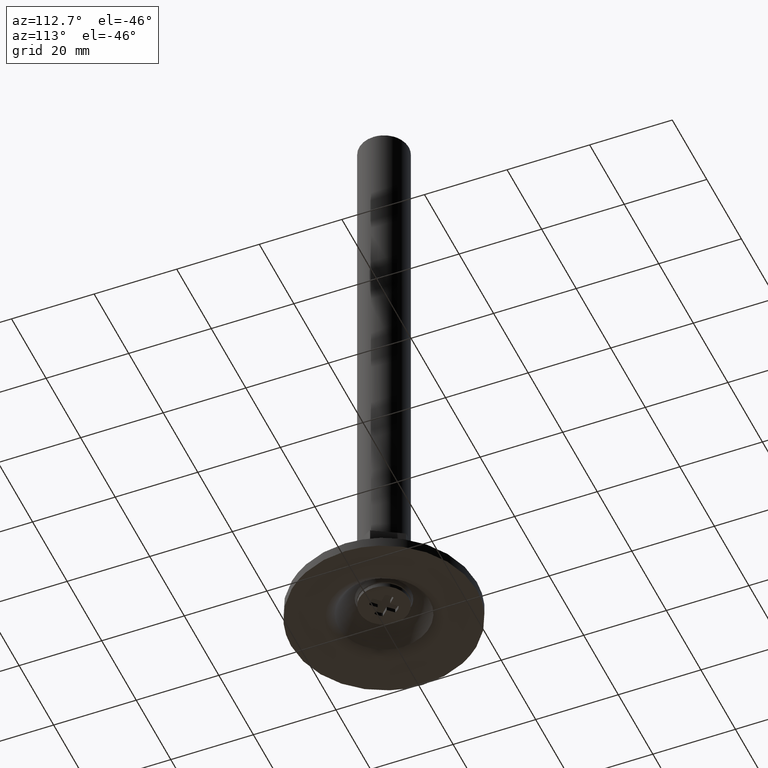
[diagram: clean part render]
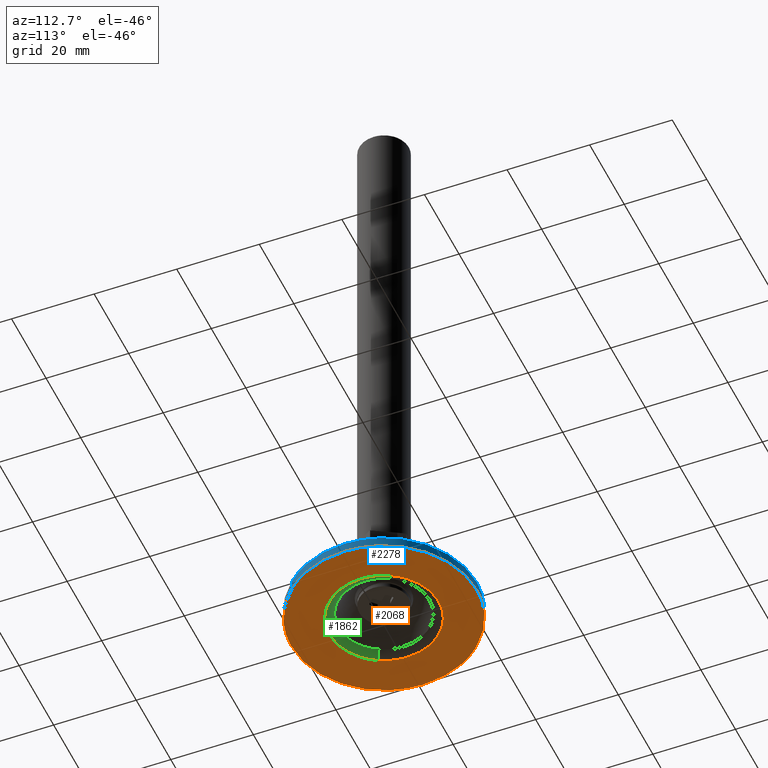
[diagram: same view with three faces highlighted in distinct colors, each labeled with its STEP entity id]
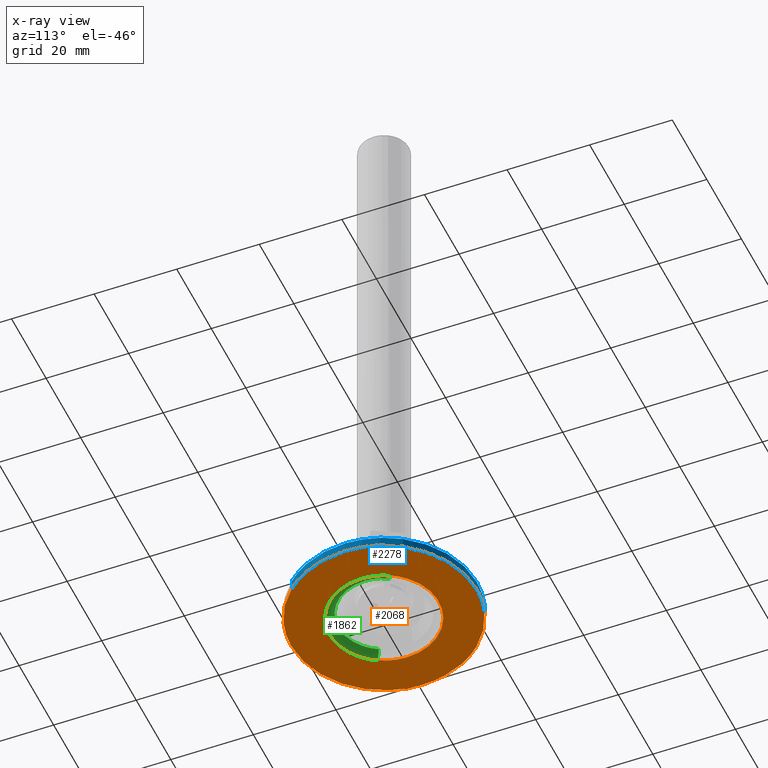
[diagram: x-ray of the same camera — body ghosted, the three highlighted faces saturated]
A machine part, auxiliary view with three faces highlighted in distinct colors.
The next image is the same camera in x-ray (body ghosted, the three faces saturated) — at least one of them is partly hidden behind the body in this view.
Their STEP definitions:

[orange] entity #2068 — the highlighted face is a freeform B-spline surface patch.
#1696=CARTESIAN_POINT('',(-11.625521835504660,-6.391184713284471,3.979822E-016));
#1697=VERTEX_POINT('',#1696);
#1707=CARTESIAN_POINT('',(-13.266499161421599,0.0,0.0));
#1708=VERTEX_POINT('',#1707);
#1709=CARTESIAN_POINT('',(-11.625521835504660,-6.391184713284471,3.979822E-016));
#1710=CARTESIAN_POINT('',(-11.976938626920720,-5.752058815245080,3.553738E-016));
#1711=CARTESIAN_POINT('',(-12.517089338621510,-4.542935168546803,2.766357E-016));
#1712=CARTESIAN_POINT('',(-13.113382631406150,-2.396435210340987,1.422947E-016));
#1713=CARTESIAN_POINT('',(-13.266639994917361,-0.903038111769238,5.275271E-017));
#1714=CARTESIAN_POINT('',(-13.266499161421599,0.0,0.0));
#1715=B_SPLINE_CURVE_WITH_KNOTS('',3,(#1709,#1710,#1711,#1712,#1713,#1714),.UNSPECIFIED.,.F.,.U.,(4,1,1,4),(0.000000012861800,2.188100938935548,3.959402328377551,6.668486947587002),.UNSPECIFIED.);
#1716=EDGE_CURVE('',#1697,#1708,#1715,.T.);
#1718=CARTESIAN_POINT('',(11.625521835504660,6.391184713284469,4.285962E-016));
#1719=VERTEX_POINT('',#1718);
#1720=CARTESIAN_POINT('',(-13.266499161421599,0.0,0.0));
#1721=CARTESIAN_POINT('',(-13.266541504141911,0.729360975372097,3.024318E-018));
#1722=CARTESIAN_POINT('',(-13.138401855159980,2.279235785752331,1.152226E-017));
#1723=CARTESIAN_POINT('',(-12.566695280902980,4.448448223463146,2.975396E-017));
#1724=CARTESIAN_POINT('',(-11.523500255926701,6.736600451629273,5.609507E-017));
#1725=CARTESIAN_POINT('',(-9.980653534092264,8.904666803353583,9.000917E-017));
#1726=CARTESIAN_POINT('',(-7.726880935070288,10.924393797086140,1.347919E-016));
#1727=CARTESIAN_POINT('',(-5.154006582786829,12.342954572310180,1.822358E-016));
#1728=CARTESIAN_POINT('',(-2.645163525983460,13.070271038717960,2.257785E-016));
#1729=CARTESIAN_POINT('',(-0.236713388477782,13.329011114829290,2.657561E-016));
#1730=CARTESIAN_POINT('',(2.140397046166540,13.178968312136710,3.035320E-016));
#1731=CARTESIAN_POINT('',(4.487106861740802,12.557280666191019,3.388607E-016));
#1732=CARTESIAN_POINT('',(6.478094494991458,11.633988879649420,3.671925E-016));
#1733=CARTESIAN_POINT('',(8.423296458930958,10.349620141112680,3.932871E-016));
#1734=CARTESIAN_POINT('',(10.203198777745570,8.626375225663470,4.148913E-016));
#1735=CARTESIAN_POINT('',(11.230291360848121,7.110229917939481,4.251941E-016));
#1736=CARTESIAN_POINT('',(11.625521835504660,6.391184713284469,4.285962E-016));
#1737=B_SPLINE_CURVE_WITH_KNOTS('',3,(#1720,#1721,#1722,#1723,#1724,#1725,#1726,#1727,#1728,#1729,#1730,#1731,#1732,#1733,#1734,#1735,#1736),.UNSPECIFIED.,.F.,.U.,(4,1,1,1,1,1,1,1,1,1,1,1,1,1,4),(0.000000233589120,2.188089414076735,4.649667989158274,6.701037500740267,9.709706952712331,12.581628220971920,15.727055630758720,18.462028473027321,20.376627807583759,22.975048172187240,25.573434112363881,27.624787538375511,29.539408102722621,32.548078422629402,35.009621496758747),.UNSPECIFIED.);
#1738=EDGE_CURVE('',#1708,#1719,#1737,.T.);
#1829=CARTESIAN_POINT('',(13.266499161421599,0.0,0.0));
#1830=VERTEX_POINT('',#1829);
#1831=CARTESIAN_POINT('',(11.625521835504660,6.391184713284469,4.285962E-016));
#1832=CARTESIAN_POINT('',(12.144457274773570,5.447781481160093,3.608613E-016));
#1833=CARTESIAN_POINT('',(12.976495301490379,3.368789559554618,2.166254E-016));
#1834=CARTESIAN_POINT('',(13.266865754212050,1.146171486647393,7.210323E-017));
#1835=CARTESIAN_POINT('',(13.266499161421599,0.0,0.0));
#1836=B_SPLINE_CURVE_WITH_KNOTS('',3,(#1831,#1832,#1833,#1834,#1835),.UNSPECIFIED.,.F.,.U.,(4,1,4),(0.000000012862060,3.230067143567569,6.668486947587000),.UNSPECIFIED.);
#1837=EDGE_CURVE('',#1719,#1830,#1836,.T.);
#1839=CARTESIAN_POINT('',(13.266499161421599,0.0,0.0));
#1840=CARTESIAN_POINT('',(13.267074775348631,-1.276471834726209,4.907342E-018));
#1841=CARTESIAN_POINT('',(13.001220872118710,-3.099526678467820,1.591601E-017));
#1842=CARTESIAN_POINT('',(12.075895478779650,-5.630393481642011,3.954237E-017));
#1843=CARTESIAN_POINT('',(10.868069036925190,-7.788896299514039,6.597206E-017));
#1844=CARTESIAN_POINT('',(9.190394295147423,-9.675732896643769,9.840300E-017));
#1845=CARTESIAN_POINT('',(7.094538297063879,-11.297337436297401,1.360850E-016));
#1846=CARTESIAN_POINT('',(4.935679261946577,-12.416129270955810,1.727755E-016));
#1847=CARTESIAN_POINT('',(2.730687802870714,-13.030815253021791,2.082166E-016));
#1848=CARTESIAN_POINT('',(0.693344321215253,-13.292280017151141,2.397828E-016));
#1849=CARTESIAN_POINT('',(-1.228477954606753,-13.270135459361789,2.685239E-016));
#1850=CARTESIAN_POINT('',(-3.569124563027646,-12.852770832206650,3.020251E-016));
#1851=CARTESIAN_POINT('',(-5.887979775738906,-11.988348351721219,3.334777E-016));
#1852=CARTESIAN_POINT('',(-8.258464852161618,-10.509166640252969,3.633372E-016));
#1853=CARTESIAN_POINT('',(-10.203221463394261,-8.626389957338716,3.852566E-016));
#1854=CARTESIAN_POINT('',(-11.230288191031210,-7.110228030367081,3.948231E-016));
#1855=CARTESIAN_POINT('',(-11.625521835504660,-6.391184713284471,3.979822E-016));
#1856=B_SPLINE_CURVE_WITH_KNOTS('',3,(#1839,#1840,#1841,#1842,#1843,#1844,#1845,#1846,#1847,#1848,#1849,#1850,#1851,#1852,#1853,#1854,#1855),.UNSPECIFIED.,.F.,.U.,(4,1,1,1,1,1,1,1,1,1,1,1,1,1,4),(0.000000233587969,3.829177178310196,5.470243180141814,8.068626115674828,11.214033894020909,12.991872108094300,16.000507062653579,18.462028473027040,19.829595868505859,22.154478360474759,24.205846692407409,26.941007560486739,29.539408102722401,32.548078422629288,35.009621496758768),.UNSPECIFIED.);
#1857=EDGE_CURVE('',#1830,#1697,#1856,.T.);
#1967=CARTESIAN_POINT('',(24.747749912781270,-24.747749912781181,0.0));
#1968=CARTESIAN_POINT('',(-24.747751119775330,-24.747749912781181,0.0));
#1969=CARTESIAN_POINT('',(24.747749912781270,24.747751119775231,0.0));
#1970=CARTESIAN_POINT('',(-24.747751119775330,24.747751119775231,0.0));
#1971=B_SPLINE_SURFACE_WITH_KNOTS('',1,1,((#1967,#1969),(#1968,#1970)),.UNSPECIFIED.,.F.,.F.,.U.,(2,2),(2,2),(0.0,49.495501032556589),(0.0,49.495501032556419),.UNSPECIFIED.);
#1972=CARTESIAN_POINT('',(-22.500000000000000,0.0,0.0));
#1973=VERTEX_POINT('',#1972);
#1974=CARTESIAN_POINT('',(-16.320922946411649,15.487977669410711,1.926750E-011));
#1975=VERTEX_POINT('',#1974);
#1976=CARTESIAN_POINT('',(-22.500000000000000,0.0,0.0));
#1977=CARTESIAN_POINT('',(-22.500113968359958,1.290084206286593,1.604903E-012));
#1978=CARTESIAN_POINT('',(-22.304316878680979,3.558807770512854,4.427262E-012));
#1979=CARTESIAN_POINT('',(-21.570845771034950,6.591993442626992,8.200634E-012));
#1980=CARTESIAN_POINT('',(-20.553730517630839,9.303666790284426,1.157404E-011));
#1981=CARTESIAN_POINT('',(-18.948622482158640,12.339519573251810,1.535073E-011));
#1982=CARTESIAN_POINT('',(-17.362230880133900,14.390982772080751,1.790281E-011));
#1983=CARTESIAN_POINT('',(-16.320922946411649,15.487977669410711,1.926750E-011));
#1984=B_SPLINE_CURVE_WITH_KNOTS('',3,(#1976,#1977,#1978,#1979,#1980,#1981,#1982,#1983),.UNSPECIFIED.,.F.,.U.,(4,1,1,1,1,4),(0.000000021520435,3.870236930279521,6.806298257423510,9.341933864975838,12.544912210286389,17.082434980384420),.UNSPECIFIED.);
#1985=EDGE_CURVE('',#1973,#1975,#1984,.T.);
#1986=ORIENTED_EDGE('',*,*,#1985,.T.);
#1987=CARTESIAN_POINT('',(0.000001948370509,22.499999999999918,0.0));
#1988=VERTEX_POINT('',#1987);
#1989=CARTESIAN_POINT('',(-16.320922946411649,15.487977669410711,1.926750E-011));
#1990=CARTESIAN_POINT('',(-15.110063719225669,16.764588918176589,1.783803E-011));
#1991=CARTESIAN_POINT('',(-12.938593028605469,18.571526396298850,1.527453E-011));
#1992=CARTESIAN_POINT('',(-9.896830404417910,20.261810953240111,1.168360E-011));
#1993=CARTESIAN_POINT('',(-7.346605714138147,21.319378220916018,8.672963E-012));
#1994=CARTESIAN_POINT('',(-4.184624540175745,22.225245507458439,4.940118E-012));
#1995=CARTESIAN_POINT('',(-1.569278530884917,22.500227116044702,1.852598E-012));
#1996=CARTESIAN_POINT('',(0.000001948370509,22.499999999999918,0.0));
#1997=B_SPLINE_CURVE_WITH_KNOTS('',3,(#1989,#1990,#1991,#1992,#1993,#1994,#1995,#1996),.UNSPECIFIED.,.F.,.U.,(4,1,1,1,1,4),(0.000000026464356,5.278437984761071,8.416969190577849,10.414192398242790,13.552743324542099,18.260539566417421),.UNSPECIFIED.);
#1998=EDGE_CURVE('',#1975,#1988,#1997,.T.);
#1999=ORIENTED_EDGE('',*,*,#1998,.T.);
#2000=CARTESIAN_POINT('',(22.500000000000000,0.0,0.0));
#2001=VERTEX_POINT('',#2000);
#2002=CARTESIAN_POINT('',(0.000001948370509,22.499999999999918,0.0));
#2003=CARTESIAN_POINT('',(1.288548630613537,22.500103910528821,0.0));
#2004=CARTESIAN_POINT('',(3.681518980185440,22.293870294810471,0.0));
#2005=CARTESIAN_POINT('',(6.993863515376519,21.464155683538880,0.0));
#2006=CARTESIAN_POINT('',(10.326174099631830,20.107895770157320,0.0));
#2007=CARTESIAN_POINT('',(13.278731925074551,18.288553894204810,0.0));
#2008=CARTESIAN_POINT('',(16.238999279883831,15.719133095914440,0.0));
#2009=CARTESIAN_POINT('',(18.219133938208831,13.336375224810890,0.0));
#2010=CARTESIAN_POINT('',(19.862106443416049,10.669653980816481,0.0));
#2011=CARTESIAN_POINT('',(21.163841742574551,7.917786341067790,0.0));
#2012=CARTESIAN_POINT('',(22.232150400581968,4.233741444193983,0.0));
#2013=CARTESIAN_POINT('',(22.500153865290120,1.426607296714789,0.0));
#2014=CARTESIAN_POINT('',(22.500000000000000,0.0,0.0));
#2015=B_SPLINE_CURVE_WITH_KNOTS('',3,(#2002,#2003,#2004,#2005,#2006,#2007,#2008,#2009,#2010,#2011,#2012,#2013,#2014),.UNSPECIFIED.,.F.,.U.,(4,1,1,1,1,1,1,1,1,1,4),(0.000000092857171,3.865624436655814,7.179038418416258,10.216338001058631,14.634205865736790,17.533483847616090,21.951286654925219,23.884108194995260,26.921406544100389,31.063170932761061,35.342971697531461),.UNSPECIFIED.);
#2016=EDGE_CURVE('',#1988,#2001,#2015,.T.);
#2017=ORIENTED_EDGE('',*,*,#2016,.T.);
#2018=CARTESIAN_POINT('',(16.320922946411589,-15.487977669410650,1.926750E-011));
#2019=VERTEX_POINT('',#2018);
#2020=CARTESIAN_POINT('',(22.500000000000000,0.0,0.0));
#2021=CARTESIAN_POINT('',(22.500122763408172,-1.290086975882271,1.604906E-012));
#2022=CARTESIAN_POINT('',(22.323486416621300,-3.336373487313658,4.150547E-012));
#2023=CARTESIAN_POINT('',(21.674959322538822,-6.203718958208104,7.717609E-012));
#2024=CARTESIAN_POINT('',(20.745011038705030,-8.899937068519108,1.107178E-011));
#2025=CARTESIAN_POINT('',(19.082661771354640,-12.160093845419730,1.512752E-011));
#2026=CARTESIAN_POINT('',(17.392868439970250,-14.358728447815190,1.786268E-011));
#2027=CARTESIAN_POINT('',(16.320922946411589,-15.487977669410650,1.926750E-011));
#2028=B_SPLINE_CURVE_WITH_KNOTS('',3,(#2020,#2021,#2022,#2023,#2024,#2025,#2026,#2027),.UNSPECIFIED.,.F.,.U.,(4,1,1,1,1,4),(0.000000021528095,3.870236930284834,6.139006360384721,8.808118124476836,12.411454409712659,17.082434980384392),.UNSPECIFIED.);
#2029=EDGE_CURVE('',#2001,#2019,#2028,.T.);
#2030=ORIENTED_EDGE('',*,*,#2029,.T.);
#2031=CARTESIAN_POINT('',(-0.000001948370870,-22.499999999999918,0.0));
#2032=VERTEX_POINT('',#2031);
#2033=CARTESIAN_POINT('',(16.320922946411589,-15.487977669410650,1.926750E-011));
#2034=CARTESIAN_POINT('',(15.633546268588219,-16.212375930340269,1.845603E-011));
#2035=CARTESIAN_POINT('',(14.127063404015111,-17.601712875655512,1.667756E-011));
#2036=CARTESIAN_POINT('',(11.272296136396569,-19.591640416899580,1.330740E-011));
#2037=CARTESIAN_POINT('',(8.079863267181958,-21.109430929483221,9.538602E-012));
#2038=CARTESIAN_POINT('',(4.184616112460575,-22.225229006534391,4.940108E-012));
#2039=CARTESIAN_POINT('',(1.569279916707052,-22.500228761932291,1.852600E-012));
#2040=CARTESIAN_POINT('',(-0.000001948370870,-22.499999999999918,0.0));
#2041=B_SPLINE_CURVE_WITH_KNOTS('',3,(#2033,#2034,#2035,#2036,#2037,#2038,#2039,#2040),.UNSPECIFIED.,.F.,.U.,(4,1,1,1,1,4),(0.000000026468665,2.995858530149059,6.134411292749894,10.414192398244881,13.552743324543650,18.260539566417702),.UNSPECIFIED.);
#2042=EDGE_CURVE('',#2019,#2032,#2041,.T.);
#2043=ORIENTED_EDGE('',*,*,#2042,.T.);
#2044=CARTESIAN_POINT('',(-0.000001948370870,-22.499999999999918,0.0));
#2045=CARTESIAN_POINT('',(-1.288549063874959,-22.500108094975161,0.0));
#2046=CARTESIAN_POINT('',(-3.681510481042210,-22.293843641591870,0.0));
#2047=CARTESIAN_POINT('',(-7.486303176441662,-21.340959863895449,0.0));
#2048=CARTESIAN_POINT('',(-10.780225216150290,-19.868819913958021,0.0));
#2049=CARTESIAN_POINT('',(-13.508033697709161,-18.057900290719580,0.0));
#2050=CARTESIAN_POINT('',(-15.934842958918161,-16.003423374684878,0.0));
#2051=CARTESIAN_POINT('',(-18.101392941685880,-13.537962900726860,0.0));
#2052=CARTESIAN_POINT('',(-20.241807876814299,-10.088162635037049,0.0));
#2053=CARTESIAN_POINT('',(-21.599145246597519,-6.694199578704914,0.0));
#2054=CARTESIAN_POINT('',(-22.353587187834940,-3.129281959744369,0.0));
#2055=CARTESIAN_POINT('',(-22.500042015964620,-1.058435247443339,0.0));
#2056=CARTESIAN_POINT('',(-22.500000000000000,0.0,0.0));
#2057=B_SPLINE_CURVE_WITH_KNOTS('',3,(#2044,#2045,#2046,#2047,#2048,#2049,#2050,#2051,#2052,#2053,#2054,#2055,#2056),.UNSPECIFIED.,.F.,.U.,(4,1,1,1,1,1,1,1,1,1,4),(0.000000092859231,3.865624436657459,7.179038418417516,11.734980350779800,14.634205865737540,16.981199710401750,21.260981191600870,24.436336740466249,29.130349392977148,32.167666723673442,35.342971697531432),.UNSPECIFIED.);
#2058=EDGE_CURVE('',#2032,#1973,#2057,.T.);
#2059=ORIENTED_EDGE('',*,*,#2058,.T.);
#2060=EDGE_LOOP('',(#1986,#1999,#2017,#2030,#2043,#2059));
#2061=FACE_OUTER_BOUND('',#2060,.T.);
#2062=ORIENTED_EDGE('',*,*,#1738,.F.);
#2063=ORIENTED_EDGE('',*,*,#1716,.F.);
#2064=ORIENTED_EDGE('',*,*,#1857,.F.);
#2065=ORIENTED_EDGE('',*,*,#1837,.F.);
#2066=EDGE_LOOP('',(#2062,#2063,#2064,#2065));
#2067=FACE_BOUND('',#2066,.T.);
#2068=ADVANCED_FACE('',(#2061,#2067),#1971,.T.);

[blue] entity #2278 — the highlighted face is a freeform B-spline surface patch.
#1974=CARTESIAN_POINT('',(-16.320922946411649,15.487977669410711,1.926750E-011));
#1975=VERTEX_POINT('',#1974);
#1987=CARTESIAN_POINT('',(0.000001948370509,22.499999999999918,0.0));
#1988=VERTEX_POINT('',#1987);
#1989=CARTESIAN_POINT('',(-16.320922946411649,15.487977669410711,1.926750E-011));
#1990=CARTESIAN_POINT('',(-15.110063719225669,16.764588918176589,1.783803E-011));
#1991=CARTESIAN_POINT('',(-12.938593028605469,18.571526396298850,1.527453E-011));
#1992=CARTESIAN_POINT('',(-9.896830404417910,20.261810953240111,1.168360E-011));
#1993=CARTESIAN_POINT('',(-7.346605714138147,21.319378220916018,8.672963E-012));
#1994=CARTESIAN_POINT('',(-4.184624540175745,22.225245507458439,4.940118E-012));
#1995=CARTESIAN_POINT('',(-1.569278530884917,22.500227116044702,1.852598E-012));
#1996=CARTESIAN_POINT('',(0.000001948370509,22.499999999999918,0.0));
#1997=B_SPLINE_CURVE_WITH_KNOTS('',3,(#1989,#1990,#1991,#1992,#1993,#1994,#1995,#1996),.UNSPECIFIED.,.F.,.U.,(4,1,1,1,1,4),(0.000000026464356,5.278437984761071,8.416969190577849,10.414192398242790,13.552743324542099,18.260539566417421),.UNSPECIFIED.);
#1998=EDGE_CURVE('',#1975,#1988,#1997,.T.);
#2000=CARTESIAN_POINT('',(22.500000000000000,0.0,0.0));
#2001=VERTEX_POINT('',#2000);
#2002=CARTESIAN_POINT('',(0.000001948370509,22.499999999999918,0.0));
#2003=CARTESIAN_POINT('',(1.288548630613537,22.500103910528821,0.0));
#2004=CARTESIAN_POINT('',(3.681518980185440,22.293870294810471,0.0));
#2005=CARTESIAN_POINT('',(6.993863515376519,21.464155683538880,0.0));
#2006=CARTESIAN_POINT('',(10.326174099631830,20.107895770157320,0.0));
#2007=CARTESIAN_POINT('',(13.278731925074551,18.288553894204810,0.0));
#2008=CARTESIAN_POINT('',(16.238999279883831,15.719133095914440,0.0));
#2009=CARTESIAN_POINT('',(18.219133938208831,13.336375224810890,0.0));
#2010=CARTESIAN_POINT('',(19.862106443416049,10.669653980816481,0.0));
#2011=CARTESIAN_POINT('',(21.163841742574551,7.917786341067790,0.0));
#2012=CARTESIAN_POINT('',(22.232150400581968,4.233741444193983,0.0));
#2013=CARTESIAN_POINT('',(22.500153865290120,1.426607296714789,0.0));
#2014=CARTESIAN_POINT('',(22.500000000000000,0.0,0.0));
#2015=B_SPLINE_CURVE_WITH_KNOTS('',3,(#2002,#2003,#2004,#2005,#2006,#2007,#2008,#2009,#2010,#2011,#2012,#2013,#2014),.UNSPECIFIED.,.F.,.U.,(4,1,1,1,1,1,1,1,1,1,4),(0.000000092857171,3.865624436655814,7.179038418416258,10.216338001058631,14.634205865736790,17.533483847616090,21.951286654925219,23.884108194995260,26.921406544100389,31.063170932761061,35.342971697531461),.UNSPECIFIED.);
#2016=EDGE_CURVE('',#1988,#2001,#2015,.T.);
#2018=CARTESIAN_POINT('',(16.320922946411589,-15.487977669410650,1.926750E-011));
#2019=VERTEX_POINT('',#2018);
#2020=CARTESIAN_POINT('',(22.500000000000000,0.0,0.0));
#2021=CARTESIAN_POINT('',(22.500122763408172,-1.290086975882271,1.604906E-012));
#2022=CARTESIAN_POINT('',(22.323486416621300,-3.336373487313658,4.150547E-012));
#2023=CARTESIAN_POINT('',(21.674959322538822,-6.203718958208104,7.717609E-012));
#2024=CARTESIAN_POINT('',(20.745011038705030,-8.899937068519108,1.107178E-011));
#2025=CARTESIAN_POINT('',(19.082661771354640,-12.160093845419730,1.512752E-011));
#2026=CARTESIAN_POINT('',(17.392868439970250,-14.358728447815190,1.786268E-011));
#2027=CARTESIAN_POINT('',(16.320922946411589,-15.487977669410650,1.926750E-011));
#2028=B_SPLINE_CURVE_WITH_KNOTS('',3,(#2020,#2021,#2022,#2023,#2024,#2025,#2026,#2027),.UNSPECIFIED.,.F.,.U.,(4,1,1,1,1,4),(0.000000021528095,3.870236930284834,6.139006360384721,8.808118124476836,12.411454409712659,17.082434980384392),.UNSPECIFIED.);
#2029=EDGE_CURVE('',#2001,#2019,#2028,.T.);
#2199=CARTESIAN_POINT('',(-16.320923347776471,15.487977953109461,2.562499999999882));
#2200=CARTESIAN_POINT('',(-0.832945394667007,31.808901300885921,2.562499999999882));
#2201=CARTESIAN_POINT('',(15.487977953109461,16.320923347776471,2.562499999999882));
#2202=CARTESIAN_POINT('',(31.808901300885921,0.832945394667007,2.562499999999882));
#2203=CARTESIAN_POINT('',(16.320923347776471,-15.487977953109461,2.562499999999882));
#2204=CARTESIAN_POINT('',(-16.320923347776471,15.487977953109461,-0.064062499999997));
#2205=CARTESIAN_POINT('',(-0.832945394667007,31.808901300885921,-0.064062499999997));
#2206=CARTESIAN_POINT('',(15.487977953109461,16.320923347776471,-0.064062499999997));
#2207=CARTESIAN_POINT('',(31.808901300885921,0.832945394667007,-0.064062499999997));
#2208=CARTESIAN_POINT('',(16.320923347776471,-15.487977953109461,-0.064062499999997));
#2216=(BOUNDED_SURFACE()B_SPLINE_SURFACE(2,1,((#2199,#2204),(#2200,#2205),(#2201,#2206),(#2202,#2207),(#2203,#2208)),.UNSPECIFIED.,.F.,.F.,.U.)B_SPLINE_SURFACE_WITH_KNOTS((3,2,3),(2,2),(0.0,37.279220613578552,74.558441227157090),(0.0,2.626562499999880),.UNSPECIFIED.)GEOMETRIC_REPRESENTATION_ITEM()RATIONAL_B_SPLINE_SURFACE(((1.0,1.0),(0.707106781186548,0.707106781186548),(1.0,1.0),(0.707106781186548,0.707106781186548),(1.0,1.0)))REPRESENTATION_ITEM('')SURFACE());
#2217=ORIENTED_EDGE('',*,*,#1998,.F.);
#2218=CARTESIAN_POINT('',(-16.320922947001939,15.487977668788670,2.499999999999885));
#2219=VERTEX_POINT('',#2218);
#2220=CARTESIAN_POINT('',(-16.320922947001939,15.487977668788670,2.499999999999885));
#2221=CARTESIAN_POINT('',(-16.320922946411649,15.487977669410711,1.926750E-011));
#2222=QUASI_UNIFORM_CURVE('',1,(#2220,#2221),.UNSPECIFIED.,.F.,.U.);
#2223=EDGE_CURVE('',#2219,#1975,#2222,.T.);
#2224=ORIENTED_EDGE('',*,*,#2223,.F.);
#2225=CARTESIAN_POINT('',(0.000001948370509,22.499999999999918,2.499999999999885));
#2226=VERTEX_POINT('',#2225);
#2227=CARTESIAN_POINT('',(-16.320922947001939,15.487977668788670,2.499999999999885));
#2228=CARTESIAN_POINT('',(-15.175446927567741,16.695501304642200,2.499999999999887));
#2229=CARTESIAN_POINT('',(-13.200061648920670,18.360815043820740,2.499999999999885));
#2230=CARTESIAN_POINT('',(-10.362849425288530,20.020827063630939,2.499999999999887));
#2231=CARTESIAN_POINT('',(-7.843486437947345,21.150926095275899,2.499999999999889));
#2232=CARTESIAN_POINT('',(-4.469909348920674,22.187220321522560,2.499999999999876));
#2233=CARTESIAN_POINT('',(-1.664392493906435,22.500302043613811,2.499999999999889));
#2234=CARTESIAN_POINT('',(0.000001948370509,22.499999999999918,2.499999999999885));
#2235=B_SPLINE_CURVE_WITH_KNOTS('',3,(#2227,#2228,#2229,#2230,#2231,#2232,#2233,#2234),.UNSPECIFIED.,.F.,.U.,(4,1,1,1,1,4),(0.000000026460839,4.993118240403923,7.703668610692326,9.843570402791931,13.267421353322190,18.260539567274950),.UNSPECIFIED.);
#2236=EDGE_CURVE('',#2219,#2226,#2235,.T.);
#2237=ORIENTED_EDGE('',*,*,#2236,.T.);
#2238=CARTESIAN_POINT('',(22.500000000000000,0.0,2.499999999999885));
#2239=VERTEX_POINT('',#2238);
#2240=CARTESIAN_POINT('',(0.000001948370509,22.499999999999918,2.499999999999885));
#2241=CARTESIAN_POINT('',(1.288542823857606,22.500088622953189,2.499999999999893));
#2242=CARTESIAN_POINT('',(4.003679914958948,22.266193367593232,2.499999999999866));
#2243=CARTESIAN_POINT('',(7.303408277603523,21.364001377209579,2.499999999999910));
#2244=CARTESIAN_POINT('',(10.094243762427450,20.157324692132530,2.499999999999864));
#2245=CARTESIAN_POINT('',(12.461142038544200,18.816575370512741,2.499999999999901));
#2246=CARTESIAN_POINT('',(14.848126215982941,17.000413230420889,2.499999999999923));
#2247=CARTESIAN_POINT('',(17.416392045141858,14.416582327366109,2.499999999999841));
#2248=CARTESIAN_POINT('',(19.707770800395281,11.163271622338570,2.499999999999996));
#2249=CARTESIAN_POINT('',(21.177282709631921,7.819949116157187,2.499999999999798));
#2250=CARTESIAN_POINT('',(22.219551081911959,4.141583020500266,2.500000000000003));
#2251=CARTESIAN_POINT('',(22.500402261903162,1.748786798616669,2.499999999999782));
#2252=CARTESIAN_POINT('',(22.500000000000000,0.0,2.499999999999885));
#2253=B_SPLINE_CURVE_WITH_KNOTS('',3,(#2240,#2241,#2242,#2243,#2244,#2245,#2246,#2247,#2248,#2249,#2250,#2251,#2252),.UNSPECIFIED.,.F.,.U.,(4,1,1,1,1,1,1,1,1,1,4),(0.000000092857171,3.865624436655814,8.145449903712564,10.216338001058631,12.977505951689460,16.290915226238269,19.190078410592069,23.884108194995260,28.163936626291068,30.096761194021799,35.342971697531461),.UNSPECIFIED.);
#2254=EDGE_CURVE('',#2226,#2239,#2253,.T.);
#2255=ORIENTED_EDGE('',*,*,#2254,.T.);
#2256=CARTESIAN_POINT('',(16.320922947001868,-15.487977668788609,2.499999999999885));
#2257=VERTEX_POINT('',#2256);
#2258=CARTESIAN_POINT('',(22.500000000000000,0.0,2.499999999999885));
#2259=CARTESIAN_POINT('',(22.500109492663888,-1.290086818690951,2.499999999999885));
#2260=CARTESIAN_POINT('',(22.323486006788990,-3.336370010125643,2.499999999999885));
#2261=CARTESIAN_POINT('',(21.635690878740629,-6.377507761600719,2.499999999999885));
#2262=CARTESIAN_POINT('',(20.733167645267901,-8.896595414791525,2.499999999999886));
#2263=CARTESIAN_POINT('',(19.073546904420780,-12.151540741873150,2.499999999999883));
#2264=CARTESIAN_POINT('',(17.515473794409381,-14.229728316877310,2.499999999999888));
#2265=CARTESIAN_POINT('',(16.320922947001868,-15.487977668788609,2.499999999999885));
#2266=B_SPLINE_CURVE_WITH_KNOTS('',3,(#2258,#2259,#2260,#2261,#2262,#2263,#2264,#2265),.UNSPECIFIED.,.F.,.U.,(4,1,1,1,1,4),(0.000000021519629,3.870236930084653,6.139006360072221,9.341933864506792,11.877628898893020,17.082434979526880),.UNSPECIFIED.);
#2267=EDGE_CURVE('',#2239,#2257,#2266,.T.);
#2268=ORIENTED_EDGE('',*,*,#2267,.T.);
#2269=CARTESIAN_POINT('',(16.320922947001868,-15.487977668788609,2.499999999999885));
#2270=CARTESIAN_POINT('',(16.320922946411589,-15.487977669410650,1.926750E-011));
#2271=QUASI_UNIFORM_CURVE('',1,(#2269,#2270),.UNSPECIFIED.,.F.,.U.);
#2272=EDGE_CURVE('',#2257,#2019,#2271,.T.);
#2273=ORIENTED_EDGE('',*,*,#2272,.T.);
#2274=ORIENTED_EDGE('',*,*,#2029,.F.);
#2275=ORIENTED_EDGE('',*,*,#2016,.F.);
#2276=EDGE_LOOP('',(#2217,#2224,#2237,#2255,#2268,#2273,#2274,#2275));
#2277=FACE_OUTER_BOUND('',#2276,.T.);
#2278=ADVANCED_FACE('',(#2277),#2216,.T.);

[green] entity #1862 — the highlighted face is a freeform B-spline surface patch.
#1684=CARTESIAN_POINT('',(-9.687934864041527,-5.325987261733435,1.333333331633102));
#1685=VERTEX_POINT('',#1684);
#1696=CARTESIAN_POINT('',(-11.625521835504660,-6.391184713284471,3.979822E-016));
#1697=VERTEX_POINT('',#1696);
#1698=CARTESIAN_POINT('',(-11.625521835504660,-6.391184713284471,3.979822E-016));
#1699=CARTESIAN_POINT('',(-11.353049629001999,-6.241391850170416,-0.000287738424261));
#1700=CARTESIAN_POINT('',(-10.833128898678780,-5.955563009912293,0.112153785815836));
#1701=CARTESIAN_POINT('',(-10.144622461062060,-5.577053392781671,0.585904526895522));
#1702=CARTESIAN_POINT('',(-9.814874008243386,-5.395772646799756,1.058208845332192));
#1703=CARTESIAN_POINT('',(-9.687934864041527,-5.325987261733435,1.333333331633102));
#1704=B_SPLINE_CURVE_WITH_KNOTS('',3,(#1698,#1699,#1700,#1701,#1702,#1703),.UNSPECIFIED.,.F.,.U.,(4,1,1,4),(0.000000126670766,0.932686234368486,1.780541905756768,2.713228013454519),.UNSPECIFIED.);
#1705=EDGE_CURVE('',#1697,#1685,#1704,.T.);
#1718=CARTESIAN_POINT('',(11.625521835504660,6.391184713284469,4.285962E-016));
#1719=VERTEX_POINT('',#1718);
#1740=CARTESIAN_POINT('',(9.687934864041528,5.325987261733431,1.333333331633102));
#1741=VERTEX_POINT('',#1740);
#1742=CARTESIAN_POINT('',(11.625521835504660,6.391184713284469,4.285962E-016));
#1743=CARTESIAN_POINT('',(11.377833616380119,6.255016962531050,-0.000171525334604));
#1744=CARTESIAN_POINT('',(10.956916405841620,6.023615767856357,0.082361631149880));
#1745=CARTESIAN_POINT('',(10.431167823227289,5.734583038690416,0.378072288231685));
#1746=CARTESIAN_POINT('',(10.007262728678869,5.501539240883544,0.774701596666535));
#1747=CARTESIAN_POINT('',(9.786101901014753,5.379955046998334,1.120811087950722));
#1748=CARTESIAN_POINT('',(9.687934864041528,5.325987261733431,1.333333331633102));
#1749=B_SPLINE_CURVE_WITH_KNOTS('',3,(#1742,#1743,#1744,#1745,#1746,#1747,#1748),.UNSPECIFIED.,.F.,.U.,(4,1,1,1,4),(0.000000126670618,0.847893911382317,1.441392603946064,1.992526359256725,2.713228013454519),.UNSPECIFIED.);
#1750=EDGE_CURVE('',#1719,#1741,#1749,.T.);
#1775=CARTESIAN_POINT('',(11.737734859968935,6.452874345473175,0.003281628508063));
#1776=CARTESIAN_POINT('',(18.190609205442133,-5.284860514495763,0.003281628508063));
#1777=CARTESIAN_POINT('',(6.452874345473179,-11.737734859968935,0.003281628508063));
#1778=CARTESIAN_POINT('',(-5.284860514495763,-18.190609205442133,0.003281628508063));
#1779=CARTESIAN_POINT('',(-11.737734859968935,-6.452874345473179,0.003281628508063));
#1780=CARTESIAN_POINT('',(10.260593617388333,5.640809075418678,-0.083172052395613));
#1781=CARTESIAN_POINT('',(15.901402692807014,-4.619784541969654,-0.083172052395613));
#1782=CARTESIAN_POINT('',(5.640809075418678,-10.260593617388333,-0.083172052395613));
#1783=CARTESIAN_POINT('',(-4.619784541969654,-15.901402692807014,-0.083172052395613));
#1784=CARTESIAN_POINT('',(-10.260593617388333,-5.640809075418682,-0.083172052395613));
#1785=CARTESIAN_POINT('',(9.638174667923483,5.298631362337441,1.447964635271633));
#1786=CARTESIAN_POINT('',(14.936806030260922,-4.339543305586041,1.447964635271633));
#1787=CARTESIAN_POINT('',(5.298631362337441,-9.638174667923483,1.447964635271633));
#1788=CARTESIAN_POINT('',(-4.339543305586041,-14.936806030260922,1.447964635271633));
#1789=CARTESIAN_POINT('',(-9.638174667923483,-5.298631362337441,1.447964635271633));
#1797=(BOUNDED_SURFACE()B_SPLINE_SURFACE(2,2,((#1775,#1780,#1785),(#1776,#1781,#1786),(#1777,#1782,#1787),(#1778,#1783,#1788),(#1779,#1784,#1789)),.UNSPECIFIED.,.F.,.F.,.U.)B_SPLINE_SURFACE_WITH_KNOTS((3,2,3),(3,3),(0.0,22.192819391929000,44.385638783858013),(0.0,3.059693454092194),.UNSPECIFIED.)GEOMETRIC_REPRESENTATION_ITEM()RATIONAL_B_SPLINE_SURFACE(((0.920241552324301,0.763215630463111,0.921510183518174),(0.650709041978149,0.539674947808032,0.651606099698161),(0.920241552324301,0.763215630463111,0.921510183518174),(0.650709041978149,0.539674947808032,0.651606099698161),(0.920241552324301,0.763215630463111,0.921510183518174)))REPRESENTATION_ITEM('')SURFACE());
#1798=CARTESIAN_POINT('',(11.055415967851321,0.0,1.333333333333336));
#1799=VERTEX_POINT('',#1798);
#1800=CARTESIAN_POINT('',(11.055415967851321,0.0,1.333333333333336));
#1801=CARTESIAN_POINT('',(11.055449702789589,-0.683746609608749,1.333333333319841));
#1802=CARTESIAN_POINT('',(10.903586620406459,-2.317260871598567,1.333333333275903));
#1803=CARTESIAN_POINT('',(10.204823291286891,-4.466385888196293,1.333333333179764));
#1804=CARTESIAN_POINT('',(9.171548794113368,-6.246667202248363,1.333333333065125));
#1805=CARTESIAN_POINT('',(8.029312098164752,-7.673261567741315,1.333333332949144));
#1806=CARTESIAN_POINT('',(6.750121384094349,-8.819563816684186,1.333333332828190));
#1807=CARTESIAN_POINT('',(5.143001988617220,-9.839967083750267,1.333333332684397));
#1808=CARTESIAN_POINT('',(3.285385130948361,-10.638585577305840,1.333333332525807));
#1809=CARTESIAN_POINT('',(1.299429207913514,-11.040629037528010,1.333333332365161));
#1810=CARTESIAN_POINT('',(-0.870348908192614,-11.082776094506521,1.333333332197471));
#1811=CARTESIAN_POINT('',(-2.757238258689153,-10.776309017928501,1.333333332058465));
#1812=CARTESIAN_POINT('',(-4.581447926366577,-10.106733029067820,1.333333331931382));
#1813=CARTESIAN_POINT('',(-6.251661294937784,-9.191840547179158,1.333333331821003));
#1814=CARTESIAN_POINT('',(-8.091486065121242,-7.699373523198686,1.333333331709013));
#1815=CARTESIAN_POINT('',(-9.194126153291123,-6.224966007514983,1.333333331653318));
#1816=CARTESIAN_POINT('',(-9.687934864041527,-5.325987261733435,1.333333331633102));
#1817=B_SPLINE_CURVE_WITH_KNOTS('',3,(#1800,#1801,#1802,#1803,#1804,#1805,#1806,#1807,#1808,#1809,#1810,#1811,#1812,#1813,#1814,#1815,#1816),.UNSPECIFIED.,.F.,.U.,(4,1,1,1,1,1,1,1,1,1,1,1,1,1,4),(0.000000306395535,2.051276094884223,4.900405311927997,6.723851798396279,8.205389807261991,10.370729715136550,11.852274300574290,13.903646116477420,16.410686028209909,17.892230698789479,20.399465895247062,22.108945327745889,23.704439286474042,26.097727591624839,29.174684581485462),.UNSPECIFIED.);
#1818=EDGE_CURVE('',#1799,#1685,#1817,.T.);
#1819=ORIENTED_EDGE('',*,*,#1818,.F.);
#1820=CARTESIAN_POINT('',(9.687934864041528,5.325987261733431,1.333333331633102));
#1821=CARTESIAN_POINT('',(10.120398360410411,4.539821714158619,1.333333331901807));
#1822=CARTESIAN_POINT('',(10.813722195707470,2.807321061652148,1.333333332473982));
#1823=CARTESIAN_POINT('',(11.055722719302119,0.955141895156141,1.333333333047306));
#1824=CARTESIAN_POINT('',(11.055415967851321,0.0,1.333333333333336));
#1825=B_SPLINE_CURVE_WITH_KNOTS('',3,(#1820,#1821,#1822,#1823,#1824),.UNSPECIFIED.,.F.,.U.,(4,1,4),(0.000000012079815,2.691724689281001,5.557072456683887),.UNSPECIFIED.);
#1826=EDGE_CURVE('',#1741,#1799,#1825,.T.);
#1827=ORIENTED_EDGE('',*,*,#1826,.F.);
#1828=ORIENTED_EDGE('',*,*,#1750,.F.);
#1829=CARTESIAN_POINT('',(13.266499161421599,0.0,0.0));
#1830=VERTEX_POINT('',#1829);
#1831=CARTESIAN_POINT('',(11.625521835504660,6.391184713284469,4.285962E-016));
#1832=CARTESIAN_POINT('',(12.144457274773570,5.447781481160093,3.608613E-016));
#1833=CARTESIAN_POINT('',(12.976495301490379,3.368789559554618,2.166254E-016));
#1834=CARTESIAN_POINT('',(13.266865754212050,1.146171486647393,7.210323E-017));
#1835=CARTESIAN_POINT('',(13.266499161421599,0.0,0.0));
#1836=B_SPLINE_CURVE_WITH_KNOTS('',3,(#1831,#1832,#1833,#1834,#1835),.UNSPECIFIED.,.F.,.U.,(4,1,4),(0.000000012862060,3.230067143567569,6.668486947587000),.UNSPECIFIED.);
#1837=EDGE_CURVE('',#1719,#1830,#1836,.T.);
#1838=ORIENTED_EDGE('',*,*,#1837,.T.);
#1839=CARTESIAN_POINT('',(13.266499161421599,0.0,0.0));
#1840=CARTESIAN_POINT('',(13.267074775348631,-1.276471834726209,4.907342E-018));
#1841=CARTESIAN_POINT('',(13.001220872118710,-3.099526678467820,1.591601E-017));
#1842=CARTESIAN_POINT('',(12.075895478779650,-5.630393481642011,3.954237E-017));
#1843=CARTESIAN_POINT('',(10.868069036925190,-7.788896299514039,6.597206E-017));
#1844=CARTESIAN_POINT('',(9.190394295147423,-9.675732896643769,9.840300E-017));
#1845=CARTESIAN_POINT('',(7.094538297063879,-11.297337436297401,1.360850E-016));
#1846=CARTESIAN_POINT('',(4.935679261946577,-12.416129270955810,1.727755E-016));
#1847=CARTESIAN_POINT('',(2.730687802870714,-13.030815253021791,2.082166E-016));
#1848=CARTESIAN_POINT('',(0.693344321215253,-13.292280017151141,2.397828E-016));
#1849=CARTESIAN_POINT('',(-1.228477954606753,-13.270135459361789,2.685239E-016));
#1850=CARTESIAN_POINT('',(-3.569124563027646,-12.852770832206650,3.020251E-016));
#1851=CARTESIAN_POINT('',(-5.887979775738906,-11.988348351721219,3.334777E-016));
#1852=CARTESIAN_POINT('',(-8.258464852161618,-10.509166640252969,3.633372E-016));
#1853=CARTESIAN_POINT('',(-10.203221463394261,-8.626389957338716,3.852566E-016));
#1854=CARTESIAN_POINT('',(-11.230288191031210,-7.110228030367081,3.948231E-016));
#1855=CARTESIAN_POINT('',(-11.625521835504660,-6.391184713284471,3.979822E-016));
#1856=B_SPLINE_CURVE_WITH_KNOTS('',3,(#1839,#1840,#1841,#1842,#1843,#1844,#1845,#1846,#1847,#1848,#1849,#1850,#1851,#1852,#1853,#1854,#1855),.UNSPECIFIED.,.F.,.U.,(4,1,1,1,1,1,1,1,1,1,1,1,1,1,4),(0.000000233587969,3.829177178310196,5.470243180141814,8.068626115674828,11.214033894020909,12.991872108094300,16.000507062653579,18.462028473027040,19.829595868505859,22.154478360474759,24.205846692407409,26.941007560486739,29.539408102722401,32.548078422629288,35.009621496758768),.UNSPECIFIED.);
#1857=EDGE_CURVE('',#1830,#1697,#1856,.T.);
#1858=ORIENTED_EDGE('',*,*,#1857,.T.);
#1859=ORIENTED_EDGE('',*,*,#1705,.T.);
#1860=EDGE_LOOP('',(#1819,#1827,#1828,#1838,#1858,#1859));
#1861=FACE_OUTER_BOUND('',#1860,.T.);
#1862=ADVANCED_FACE('',(#1861),#1797,.T.);